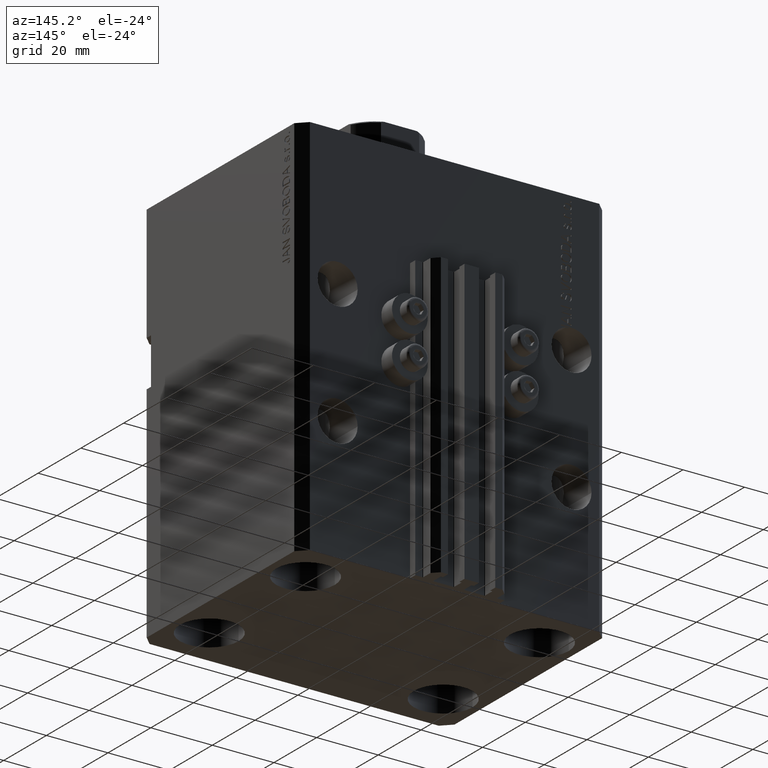
[diagram: clean part render]
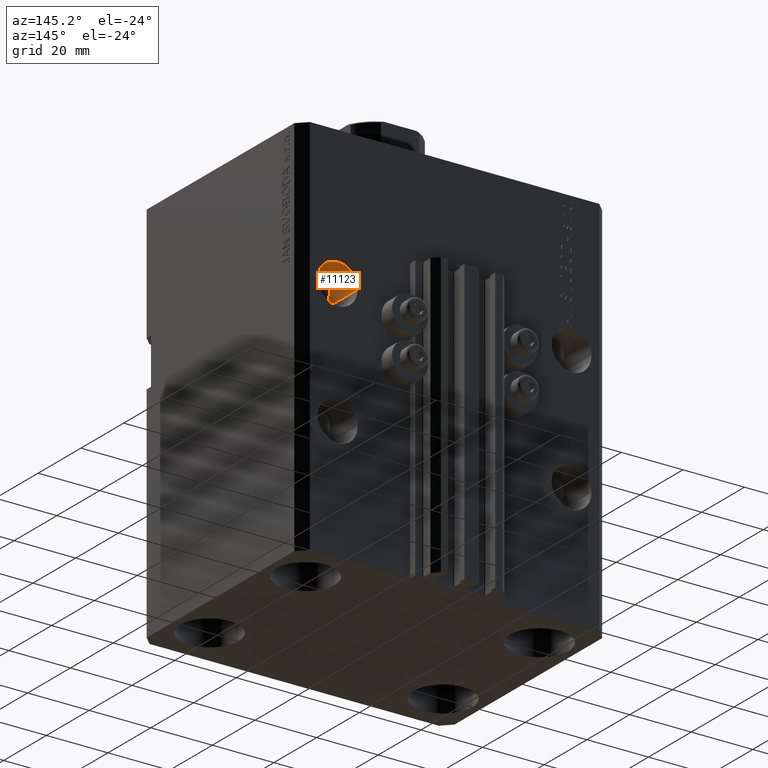
[diagram: same view with one face highlighted and labeled with its STEP entity id]
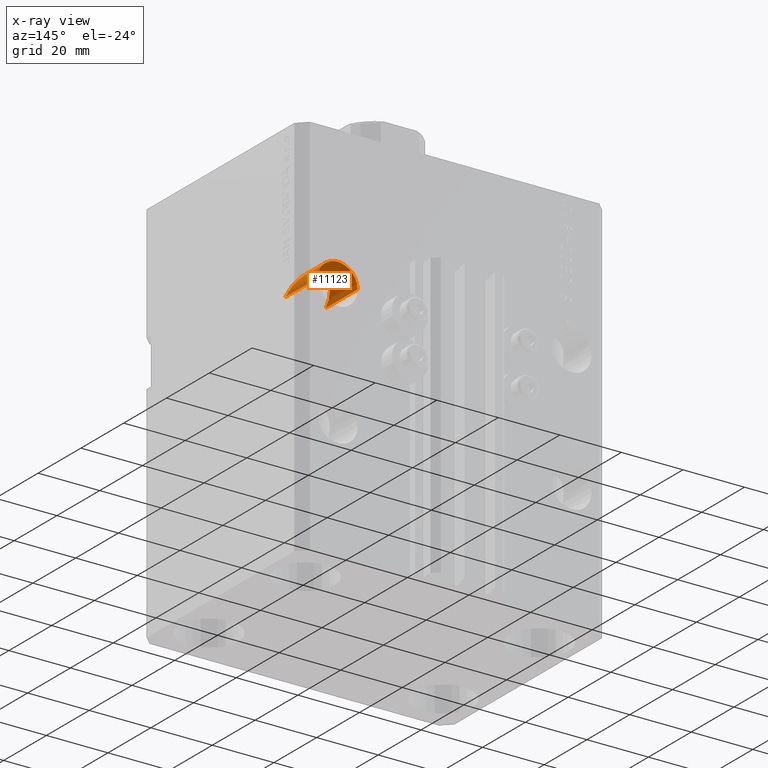
[diagram: x-ray of the same camera — body ghosted, the highlighted face saturated]
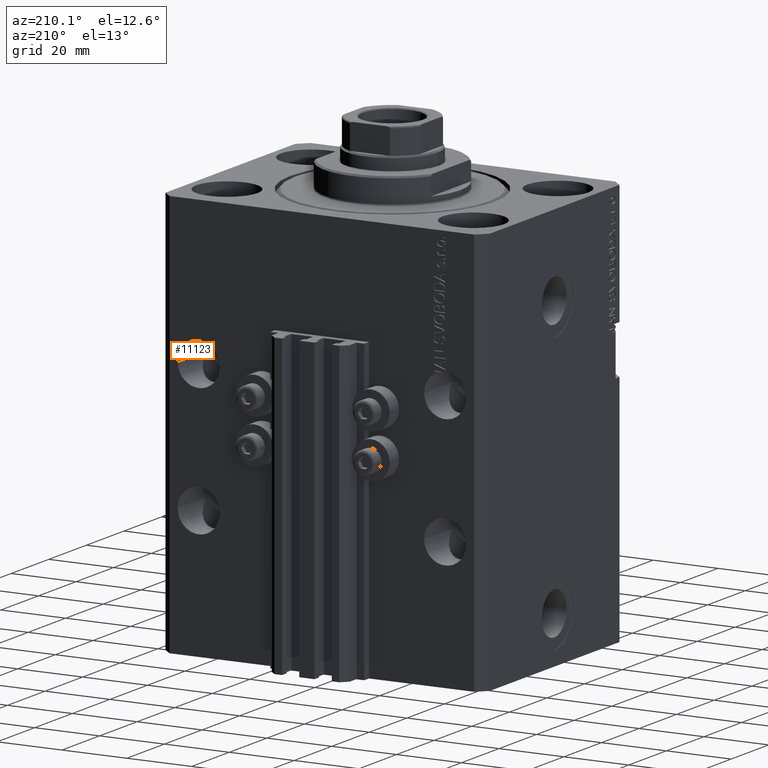
[diagram: same view with one face highlighted and labeled with its STEP entity id]
A machine part, auxiliary view. The second image highlights one B-rep face of the part: STEP entity #11123.
The next image is the same camera in x-ray: the body ghosted, the highlighted face saturated — about 0% of this face is hidden behind the body in this view.
A second angle (auxiliary view) of the same face is appended — the face is thin or edge-on in the first view.
In plain terms, the highlighted cylindrical surface (edge-blend (fillet) strip) has radius 6.5 mm, axis along (0, -1, 0).
Its self-contained STEP definition (entity closure, byte-faithful):
#538 = VERTEX_POINT ( 'NONE', #24778 ) ;
#834 = AXIS2_PLACEMENT_3D ( 'NONE', #28314, #20300, #46351 ) ;
#887 = CARTESIAN_POINT ( 'NONE',  ( 31.50000000000000355, 35.50000000000000711, -32.00000000000000000 ) ) ;
#2280 = VERTEX_POINT ( 'NONE', #2906 ) ;
#2906 = CARTESIAN_POINT ( 'NONE',  ( 44.50000000000000711, 37.49999999999999289, -45.00000000000000000 ) ) ;
#3024 = ORIENTED_EDGE ( 'NONE', *, *, #18170, .T. ) ;
#4613 = CARTESIAN_POINT ( 'NONE',  ( 31.50000000000000711, 60.50000000000002842, -45.00000000000000000 ) ) ;
#5904 = CYLINDRICAL_SURFACE ( 'NONE', #834, 6.499999999999999112 ) ;
#6078 = LINE ( 'NONE', #35795, #45451 ) ;
#6370 = CARTESIAN_POINT ( 'NONE',  ( 31.50000000000000711, 37.49999999999999289, -45.00000000000000000 ) ) ;
#6639 = ORIENTED_EDGE ( 'NONE', *, *, #8103, .F. ) ;
#7456 = CARTESIAN_POINT ( 'NONE',  ( 44.50000000000000711, 35.50000000000001421, -32.00000000000000000 ) ) ;
#8103 = EDGE_CURVE ( 'NONE', #17110, #538, #12634, .T. ) ;
#8115 = CIRCLE ( 'NONE', #41583, 6.499999999999999112 ) ;
#11123 = ADVANCED_FACE ( 'NONE', ( #43164 ), #5904, .F. ) ;
#12634 = LINE ( 'NONE', #4613, #21878 ) ;
#13291 = DIRECTION ( 'NONE',  ( -1.000000000000000000, 0.000000000000000000, 0.000000000000000000 ) ) ;
#13730 =( BOUNDED_CURVE ( )  B_SPLINE_CURVE ( 3, ( #23058, #887, #7456, #22336 ),
 .UNSPECIFIED., .F., .F. ) 
 B_SPLINE_CURVE_WITH_KNOTS ( ( 4, 4 ),
 ( 4.712388980384689674, 7.853981633974482790 ),
 .UNSPECIFIED. ) 
 CURVE ( )  GEOMETRIC_REPRESENTATION_ITEM ( )  RATIONAL_B_SPLINE_CURVE ( ( 1.000000000000000000, 0.3333333333333333703, 0.3333333333333333703, 1.000000000000000000 ) ) 
 REPRESENTATION_ITEM ( '' )  );
#16005 = CARTESIAN_POINT ( 'NONE',  ( 38.00000000000000711, 37.49999999999999289, -45.00000000000000000 ) ) ;
#16876 = VERTEX_POINT ( 'NONE', #30647 ) ;
#17110 = VERTEX_POINT ( 'NONE', #6370 ) ;
#18170 = EDGE_CURVE ( 'NONE', #2280, #16876, #6078, .T. ) ;
#19463 = DIRECTION ( 'NONE',  ( 1.101411730780568590E-16, -1.000000000000000000, -0.000000000000000000 ) ) ;
#19724 = EDGE_CURVE ( 'NONE', #17110, #2280, #8115, .T. ) ;
#19845 = ORIENTED_EDGE ( 'NONE', *, *, #22976, .F. ) ;
#20300 = DIRECTION ( 'NONE',  ( 1.101411730780568590E-16, -1.000000000000000000, -0.000000000000000000 ) ) ;
#20856 = ORIENTED_EDGE ( 'NONE', *, *, #19724, .T. ) ;
#21878 = VECTOR ( 'NONE', #19463, 1000.000000000000000 ) ;
#22336 = CARTESIAN_POINT ( 'NONE',  ( 44.50000000000000711, 22.50000000000001421, -45.00000000000000000 ) ) ;
#22976 = EDGE_CURVE ( 'NONE', #538, #16876, #13730, .T. ) ;
#23058 = CARTESIAN_POINT ( 'NONE',  ( 31.50000000000000711, 22.50000000000001421, -45.00000000000000000 ) ) ;
#24778 = CARTESIAN_POINT ( 'NONE',  ( 31.50000000000000711, 22.50000000000001421, -45.00000000000000000 ) ) ;
#28314 = CARTESIAN_POINT ( 'NONE',  ( 38.00000000000000711, 60.50000000000002842, -45.00000000000000000 ) ) ;
#30183 = DIRECTION ( 'NONE',  ( 1.101411730780568590E-16, -1.000000000000000000, -0.000000000000000000 ) ) ;
#30647 = CARTESIAN_POINT ( 'NONE',  ( 44.50000000000000711, 22.50000000000001421, -45.00000000000000000 ) ) ;
#35795 = CARTESIAN_POINT ( 'NONE',  ( 44.50000000000000711, 60.50000000000002842, -45.00000000000000000 ) ) ;
#39465 = EDGE_LOOP ( 'NONE', ( #6639, #20856, #3024, #19845 ) ) ;
#41583 = AXIS2_PLACEMENT_3D ( 'NONE', #16005, #41821, #13291 ) ;
#41821 = DIRECTION ( 'NONE',  ( 7.381802025433175941E-17, 1.000000000000000000, -0.000000000000000000 ) ) ;
#43164 = FACE_OUTER_BOUND ( 'NONE', #39465, .T. ) ;
#45451 = VECTOR ( 'NONE', #30183, 1000.000000000000000 ) ;
#46351 = DIRECTION ( 'NONE',  ( 1.000000000000000000, 0.000000000000000000, 0.000000000000000000 ) ) ;